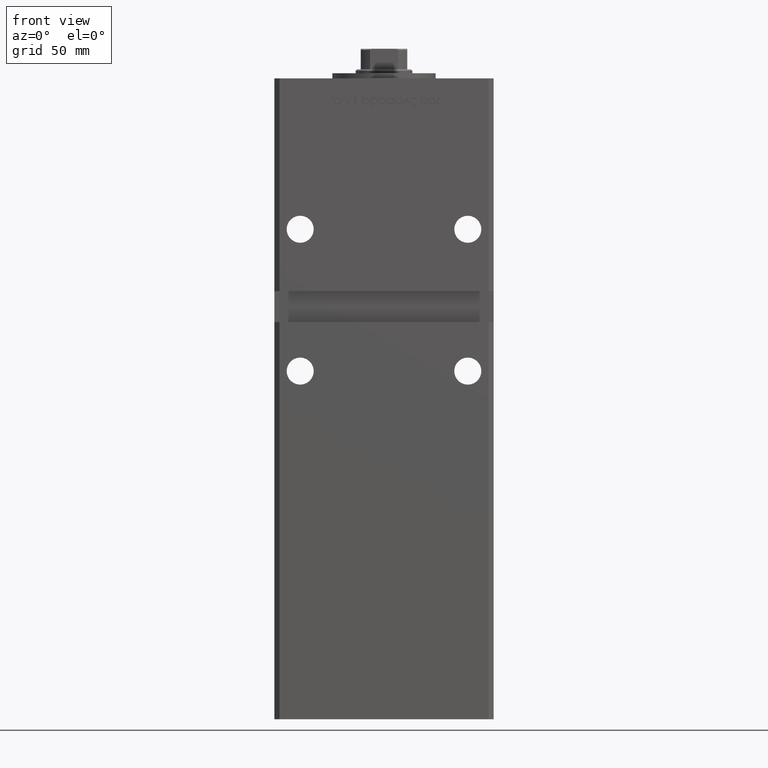
[diagram: clean part render]
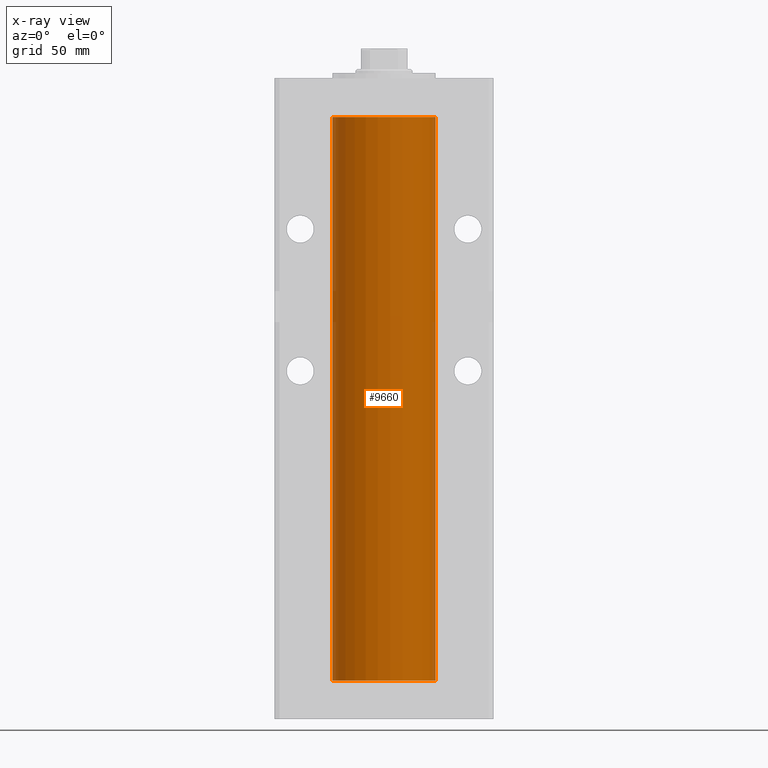
[diagram: x-ray — body ghosted, one internal face saturated and labeled with its STEP entity id]
A machine part, front view, then the same camera in x-ray: the body is ghosted and one INTERNAL B-rep face — a face not visible from any outside direction — is saturated and labeled: STEP entity #9660.
In plain terms, the highlighted cylindrical surface (partial cylindrical patch) has radius 20 mm, axis along (-0, -0, -1).
Its self-contained STEP definition (entity closure, byte-faithful):
#2133 = CIRCLE ( 'NONE', #28782, 20.00000000000000000 ) ;
#2477 = DIRECTION ( 'NONE',  ( -0.000000000000000000, -0.000000000000000000, -1.000000000000000000 ) ) ;
#5980 = EDGE_CURVE ( 'NONE', #22911, #48408, #40960, .T. ) ;
#6228 = EDGE_CURVE ( 'NONE', #39557, #22911, #11768, .T. ) ;
#6236 = CARTESIAN_POINT ( 'NONE',  ( 0.000000000000000000, 0.000000000000000000, 218.5000000000000000 ) ) ;
#7045 = FACE_OUTER_BOUND ( 'NONE', #13881, .T. ) ;
#9660 = ADVANCED_FACE ( 'NONE', ( #7045 ), #23430, .F. ) ;
#10767 = CARTESIAN_POINT ( 'NONE',  ( -20.00000000000000000, 0.000000000000000000, 0.000000000000000000 ) ) ;
#11768 = CIRCLE ( 'NONE', #18609, 20.00000000000000000 ) ;
#13881 = EDGE_LOOP ( 'NONE', ( #27183, #19155, #41803, #37385 ) ) ;
#15257 = AXIS2_PLACEMENT_3D ( 'NONE', #6236, #2477, #23160 ) ;
#17080 = CARTESIAN_POINT ( 'NONE',  ( 20.00000000000000000, 2.449293598294706513E-15, 218.5000000000000000 ) ) ;
#18609 = AXIS2_PLACEMENT_3D ( 'NONE', #19400, #31237, #22901 ) ;
#19155 = ORIENTED_EDGE ( 'NONE', *, *, #5980, .T. ) ;
#19400 = CARTESIAN_POINT ( 'NONE',  ( 0.000000000000000000, 0.000000000000000000, 218.5000000000000000 ) ) ;
#19650 = DIRECTION ( 'NONE',  ( 1.000000000000000000, 0.000000000000000000, 0.000000000000000000 ) ) ;
#20075 = EDGE_CURVE ( 'NONE', #39557, #29624, #40841, .T. ) ;
#22901 = DIRECTION ( 'NONE',  ( 1.000000000000000000, 0.000000000000000000, 0.000000000000000000 ) ) ;
#22911 = VERTEX_POINT ( 'NONE', #17080 ) ;
#23160 = DIRECTION ( 'NONE',  ( -1.000000000000000000, 0.000000000000000000, 0.000000000000000000 ) ) ;
#23430 = CYLINDRICAL_SURFACE ( 'NONE', #15257, 20.00000000000000000 ) ;
#26312 = VECTOR ( 'NONE', #45777, 1000.000000000000000 ) ;
#27183 = ORIENTED_EDGE ( 'NONE', *, *, #6228, .T. ) ;
#28782 = AXIS2_PLACEMENT_3D ( 'NONE', #51352, #44913, #19650 ) ;
#29624 = VERTEX_POINT ( 'NONE', #10767 ) ;
#30024 = VECTOR ( 'NONE', #33306, 1000.000000000000000 ) ;
#30715 = CARTESIAN_POINT ( 'NONE',  ( 20.00000000000000000, 2.449293598294706513E-15, 0.000000000000000000 ) ) ;
#31237 = DIRECTION ( 'NONE',  ( -0.000000000000000000, 0.000000000000000000, 1.000000000000000000 ) ) ;
#32515 = EDGE_CURVE ( 'NONE', #29624, #48408, #2133, .T. ) ;
#33306 = DIRECTION ( 'NONE',  ( -0.000000000000000000, -0.000000000000000000, -1.000000000000000000 ) ) ;
#33417 = CARTESIAN_POINT ( 'NONE',  ( 20.00000000000000000, 2.449293598294706513E-15, 218.5000000000000000 ) ) ;
#37385 = ORIENTED_EDGE ( 'NONE', *, *, #20075, .F. ) ;
#37547 = CARTESIAN_POINT ( 'NONE',  ( -20.00000000000000000, 0.000000000000000000, 218.5000000000000000 ) ) ;
#39557 = VERTEX_POINT ( 'NONE', #37547 ) ;
#40841 = LINE ( 'NONE', #49428, #30024 ) ;
#40960 = LINE ( 'NONE', #33417, #26312 ) ;
#41803 = ORIENTED_EDGE ( 'NONE', *, *, #32515, .F. ) ;
#44913 = DIRECTION ( 'NONE',  ( -0.000000000000000000, 0.000000000000000000, 1.000000000000000000 ) ) ;
#45777 = DIRECTION ( 'NONE',  ( -0.000000000000000000, -0.000000000000000000, -1.000000000000000000 ) ) ;
#48408 = VERTEX_POINT ( 'NONE', #30715 ) ;
#49428 = CARTESIAN_POINT ( 'NONE',  ( -20.00000000000000000, 0.000000000000000000, 218.5000000000000000 ) ) ;
#51352 = CARTESIAN_POINT ( 'NONE',  ( 0.000000000000000000, 0.000000000000000000, 0.000000000000000000 ) ) ;